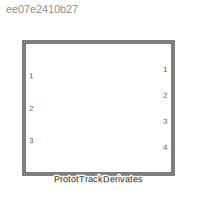
MODEL slx_ee07e2410b27
KIND library
CONFIG AbsTol = auto
CONFIG EnableMultiTasking = off
CONFIG FixedStep = auto
CONFIG MaxStep = auto
CONFIG MinStep = auto
CONFIG RelTol = 1e-3
CONFIG SampleTimeConstraint = Unconstrained
CONFIG SolverName = VariableStepAuto
CONFIG StartTime = 0.0
CONFIG StopTime = 10.0
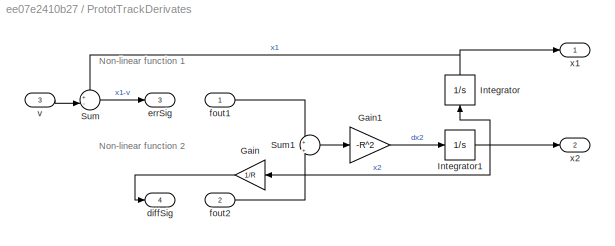
BLOCK [SubSystem] PrototTrackDerivates
  PortSchema = {"entries":[{"content":{"sides":[{"content":{"connectorIds":["In1","In2","In3"]},"type":"ConnectorPlacement.EquallySpacedRectSide","uuid":"000cee14-9e68-449a-a4ac-67a7a3165385"},{"content":{"connectorIds":["Out1","Out2"],"side":"RIGHT"},"type":"ConnectorPlacement.EquallySpacedRectSide","uuid":"72064135-bbc2-49e9-9ec1-0da547d5eb20"},{"content":{"connectorIds":["Out3","Out4"],"side":"TOP"},"type":"C...<+272ch>
  Ports = [3, 4]
  RequestExecContextInheritance = off
BLOCK [Gain] PrototTrackDerivates/Gain
  Gain = 1/R
  NameLocation = top
BLOCK [Gain] PrototTrackDerivates/Gain1
  Gain = -R^2
BLOCK [Integrator] PrototTrackDerivates/Integrator
  NameLocation = right
  Ports = [1, 1]
BLOCK [Integrator] PrototTrackDerivates/Integrator1
  Ports = [1, 1]
BLOCK [Sum] PrototTrackDerivates/Sum
  Inputs = +-|
  NameLocation = top
  Ports = [2, 1]
BLOCK [Sum] PrototTrackDerivates/Sum1
  Inputs = +|+
  Ports = [2, 1]
BLOCK [Outport] PrototTrackDerivates/diffSig
  Port = 4
BLOCK [Outport] PrototTrackDerivates/errSig
  Port = 3
BLOCK [Inport] PrototTrackDerivates/fout1
BLOCK [Inport] PrototTrackDerivates/fout2
  Port = 2
BLOCK [Inport] PrototTrackDerivates/v
  Port = 3
BLOCK [Outport] PrototTrackDerivates/x1
  VectorParamsAs1DForOutWhenUnconnected = off
BLOCK [Outport] PrototTrackDerivates/x2
  Port = 2
  VectorParamsAs1DForOutWhenUnconnected = off
ANNOTATION PrototTrackDerivates: Non-linear function 1
ANNOTATION PrototTrackDerivates: Non-linear function 2
LINE PrototTrackDerivates/Gain1:1 -> PrototTrackDerivates/Integrator1:1
LINE PrototTrackDerivates/Gain:1 -> PrototTrackDerivates/diffSig:1
NET PrototTrackDerivates/Integrator1:1 -> PrototTrackDerivates/Gain:1, PrototTrackDerivates/Integrator:1, PrototTrackDerivates/x2:1
NET PrototTrackDerivates/Integrator:1 -> PrototTrackDerivates/Sum:1, PrototTrackDerivates/x1:1
LINE PrototTrackDerivates/Sum1:1 -> PrototTrackDerivates/Gain1:1
LINE PrototTrackDerivates/Sum:1 -> PrototTrackDerivates/errSig:1
LINE PrototTrackDerivates/fout1:1 -> PrototTrackDerivates/Sum1:1
LINE PrototTrackDerivates/fout2:1 -> PrototTrackDerivates/Sum1:2
LINE PrototTrackDerivates/v:1 -> PrototTrackDerivates/Sum:2
note: NET lines group one-source signal fan-out (src -> all destinations, sorted); 1:1 wires keep LINE
